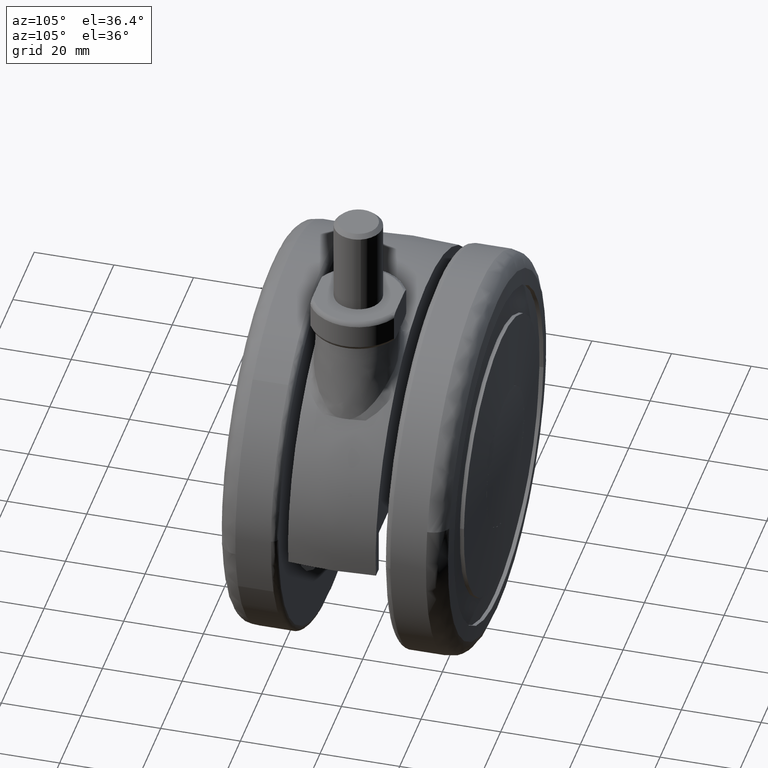
[diagram: clean part render]
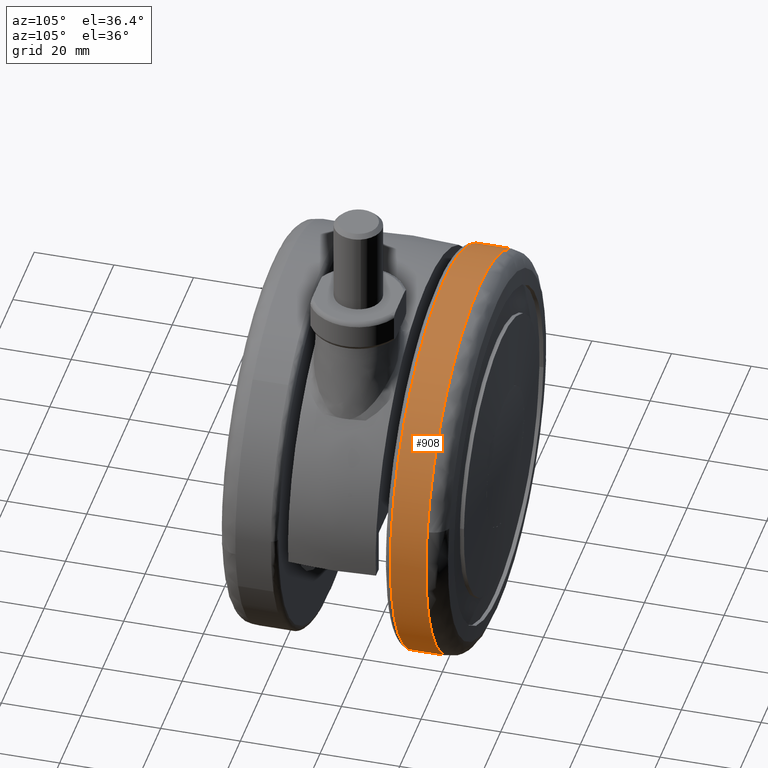
[diagram: same view with one face highlighted and labeled with its STEP entity id]
A machine part, auxiliary view. The second image highlights one B-rep face of the part: STEP entity #908.
In plain terms, the highlighted face is a freeform B-spline surface patch.
Its self-contained STEP definition (entity closure, byte-faithful):
#776=CARTESIAN_POINT('',(32.716982850135288,24.139445303144861,-37.810038788448146));
#777=CARTESIAN_POINT('',(34.907160695179037,24.139445303144861,-35.914880431273033));
#778=CARTESIAN_POINT('',(36.863866840506233,24.139445303144861,-33.779510380782973));
#779=CARTESIAN_POINT('',(70.643377221289199,24.139445303144836,3.084356459723260));
#780=CARTESIAN_POINT('',(33.779510380782973,24.139445303144829,36.863866840506233));
#781=CARTESIAN_POINT('',(-3.084356459723260,24.139445303144822,70.643377221289199));
#782=CARTESIAN_POINT('',(-36.863866840506233,24.139445303144839,33.779510380782973));
#783=CARTESIAN_POINT('',(32.716982850135288,14.771513861015315,-37.810038788448146));
#784=CARTESIAN_POINT('',(34.907160695179037,14.771513861015315,-35.914880431273033));
#785=CARTESIAN_POINT('',(36.863866840506233,14.771513861015309,-33.779510380782973));
#786=CARTESIAN_POINT('',(70.643377221289199,14.771513861015301,3.084356459723260));
#787=CARTESIAN_POINT('',(33.779510380782973,14.771513861015290,36.863866840506233));
#788=CARTESIAN_POINT('',(-3.084356459723260,14.771513861015272,70.643377221289199));
#789=CARTESIAN_POINT('',(-36.863866840506233,14.771513861015290,33.779510380782973));
#797=(BOUNDED_SURFACE()B_SPLINE_SURFACE(2,1,((#776,#783),(#777,#784),(#778,#785),(#779,#786),(#780,#787),(#781,#788),(#782,#789)),.UNSPECIFIED.,.F.,.F.,.U.)B_SPLINE_SURFACE_WITH_KNOTS((3,2,2,3),(2,2),(0.0,6.627416997969529,89.470129472588539,172.312841947207490),(0.0,9.367931442129548),.UNSPECIFIED.)GEOMETRIC_REPRESENTATION_ITEM()RATIONAL_B_SPLINE_SURFACE(((0.956886118190660,0.956886118190660),(0.976568542494924,0.976568542494924),(1.0,1.0),(0.707106781186548,0.707106781186548),(1.0,1.0),(0.707106781186548,0.707106781186548),(1.0,1.0)))REPRESENTATION_ITEM('')SURFACE());
#798=CARTESIAN_POINT('',(48.835411856445369,23.916532002915709,10.728585592302201));
#799=VERTEX_POINT('',#798);
#800=CARTESIAN_POINT('',(32.716978859741182,23.916532000000078,-37.810042241330812));
#801=VERTEX_POINT('',#800);
#802=CARTESIAN_POINT('',(48.835411856445369,23.916532002915702,10.728585592302203));
#803=CARTESIAN_POINT('',(50.000000000000007,23.916532000000000,5.427500827327885));
#804=CARTESIAN_POINT('',(50.0,23.916532000000000,8.786501E-015));
#805=CARTESIAN_POINT('',(49.999999999999993,23.916532000000004,-22.855067219901386));
#806=CARTESIAN_POINT('',(32.716978859741175,23.916532000000071,-37.810042241330812));
#814=(BOUNDED_CURVE()B_SPLINE_CURVE(2,(#802,#803,#804,#805,#806),.UNSPECIFIED.,.F.,.U.)B_SPLINE_CURVE_WITH_KNOTS((3,2,3),(0.213273120221615,0.250000000000000,0.385882135893770),.UNSPECIFIED.)CURVE()GEOMETRIC_REPRESENTATION_ITEM()RATIONAL_B_SPLINE_CURVE((0.926585904688203,0.956971783858937,1.0,0.840804175355307,0.854663300135341))REPRESENTATION_ITEM(''));
#815=EDGE_CURVE('',#799,#801,#814,.T.);
#816=ORIENTED_EDGE('',*,*,#815,.F.);
#817=CARTESIAN_POINT('',(0.0,23.916532000000000,50.000000000000007));
#818=VERTEX_POINT('',#817);
#819=CARTESIAN_POINT('',(0.0,23.916532000000000,50.000000000000007));
#820=CARTESIAN_POINT('',(40.207927930512263,23.916532000000000,50.000000000000014));
#821=CARTESIAN_POINT('',(48.835411856445376,23.916532002915712,10.728585592302204));
#829=(BOUNDED_CURVE()B_SPLINE_CURVE(2,(#819,#820,#821),.UNSPECIFIED.,.F.,.U.)B_SPLINE_CURVE_WITH_KNOTS((3,3),(0.0,0.213273120221615),.UNSPECIFIED.)CURVE()GEOMETRIC_REPRESENTATION_ITEM()RATIONAL_B_SPLINE_CURVE((1.0,0.750134997327611,0.926585904688203))REPRESENTATION_ITEM(''));
#830=EDGE_CURVE('',#818,#799,#829,.T.);
#831=ORIENTED_EDGE('',*,*,#830,.F.);
#832=CARTESIAN_POINT('',(-36.863868238531509,23.916531999999918,33.779508855105973));
#833=VERTEX_POINT('',#832);
#834=CARTESIAN_POINT('',(-36.863868238531545,23.916531999999997,33.779508855106009));
#835=CARTESIAN_POINT('',(-22.000527779582981,23.916532000000004,50.000000000000028));
#836=CARTESIAN_POINT('',(0.0,23.916532000000000,50.000000000000007));
#844=(BOUNDED_CURVE()B_SPLINE_CURVE(2,(#834,#835,#836),.UNSPECIFIED.,.F.,.U.)B_SPLINE_CURVE_WITH_KNOTS((3,3),(0.868415202836315,1.0),.UNSPECIFIED.)CURVE()GEOMETRIC_REPRESENTATION_ITEM()RATIONAL_B_SPLINE_CURVE((0.853959781609135,0.845838820847252,1.0))REPRESENTATION_ITEM(''));
#845=EDGE_CURVE('',#833,#818,#844,.T.);
#846=ORIENTED_EDGE('',*,*,#845,.F.);
#847=CARTESIAN_POINT('',(-36.863869205047408,14.999999997920209,33.779507800283419));
#848=VERTEX_POINT('',#847);
#849=CARTESIAN_POINT('',(-36.863868238531509,23.916531999999918,33.779508855105973));
#850=CARTESIAN_POINT('',(-36.863869205047408,14.999999997920209,33.779507800283419));
#851=QUASI_UNIFORM_CURVE('',1,(#849,#850),.UNSPECIFIED.,.F.,.U.);
#852=EDGE_CURVE('',#833,#848,#851,.T.);
#853=ORIENTED_EDGE('',*,*,#852,.T.);
#854=CARTESIAN_POINT('',(0.0,15.0,50.000000000000007));
#855=VERTEX_POINT('',#854);
#856=CARTESIAN_POINT('',(-36.863869205047415,14.999999997920215,33.779507800283419));
#857=CARTESIAN_POINT('',(-22.000528633359576,15.000000000000004,50.0));
#858=CARTESIAN_POINT('',(0.0,15.0,50.000000000000007));
#866=(BOUNDED_CURVE()B_SPLINE_CURVE(2,(#856,#857,#858),.UNSPECIFIED.,.F.,.U.)B_SPLINE_CURVE_WITH_KNOTS((3,3),(0.868415198517103,1.0),.UNSPECIFIED.)CURVE()GEOMETRIC_REPRESENTATION_ITEM()RATIONAL_B_SPLINE_CURVE((0.853959782142269,0.845838815786981,1.0))REPRESENTATION_ITEM(''));
#867=EDGE_CURVE('',#848,#855,#866,.T.);
#868=ORIENTED_EDGE('',*,*,#867,.T.);
#869=CARTESIAN_POINT('',(49.984209464156407,14.999999993750169,-1.256504772508640));
#870=VERTEX_POINT('',#869);
#871=CARTESIAN_POINT('',(0.0,15.0,50.000000000000007));
#872=CARTESIAN_POINT('',(49.999999999999993,14.999999999999996,50.000000000000028));
#873=CARTESIAN_POINT('',(50.0,15.0,5.510729E-015));
#874=CARTESIAN_POINT('',(50.0,15.000000000000005,-0.628351606510906));
#875=CARTESIAN_POINT('',(49.984209464156415,14.999999993750173,-1.256504772508640));
#883=(BOUNDED_CURVE()B_SPLINE_CURVE(2,(#871,#872,#873,#874,#875),.UNSPECIFIED.,.F.,.U.)B_SPLINE_CURVE_WITH_KNOTS((3,2,3),(0.0,0.250000000000000,0.254420108232585),.UNSPECIFIED.)CURVE()GEOMETRIC_REPRESENTATION_ITEM()RATIONAL_B_SPLINE_CURVE((1.0,0.707106781186547,1.0,0.994821521089017,0.989826157676168))REPRESENTATION_ITEM(''));
#884=EDGE_CURVE('',#855,#870,#883,.T.);
#885=ORIENTED_EDGE('',*,*,#884,.T.);
#886=CARTESIAN_POINT('',(32.716979507290482,14.999999998437010,-37.810041680965547));
#887=VERTEX_POINT('',#886);
#888=CARTESIAN_POINT('',(49.984209464156415,14.999999993750173,-1.256504772508640));
#889=CARTESIAN_POINT('',(49.428840258933917,14.999999996582881,-23.349290477416588));
#890=CARTESIAN_POINT('',(32.716979507290475,14.999999998437010,-37.810041680965554));
#898=(BOUNDED_CURVE()B_SPLINE_CURVE(2,(#888,#889,#890),.UNSPECIFIED.,.F.,.U.)B_SPLINE_CURVE_WITH_KNOTS((3,3),(0.254420108232585,0.385882133306329),.UNSPECIFIED.)CURVE()GEOMETRIC_REPRESENTATION_ITEM()RATIONAL_B_SPLINE_CURVE((0.989826157676168,0.841255001569349,0.854663299607536))REPRESENTATION_ITEM(''));
#899=EDGE_CURVE('',#870,#887,#898,.T.);
#900=ORIENTED_EDGE('',*,*,#899,.T.);
#901=CARTESIAN_POINT('',(32.716978859741182,23.916532000000078,-37.810042241330812));
#902=CARTESIAN_POINT('',(32.716979507290482,14.999999998437010,-37.810041680965547));
#903=QUASI_UNIFORM_CURVE('',1,(#901,#902),.UNSPECIFIED.,.F.,.U.);
#904=EDGE_CURVE('',#801,#887,#903,.T.);
#905=ORIENTED_EDGE('',*,*,#904,.F.);
#906=EDGE_LOOP('',(#816,#831,#846,#853,#868,#885,#900,#905));
#907=FACE_OUTER_BOUND('',#906,.T.);
#908=ADVANCED_FACE('',(#907),#797,.T.);